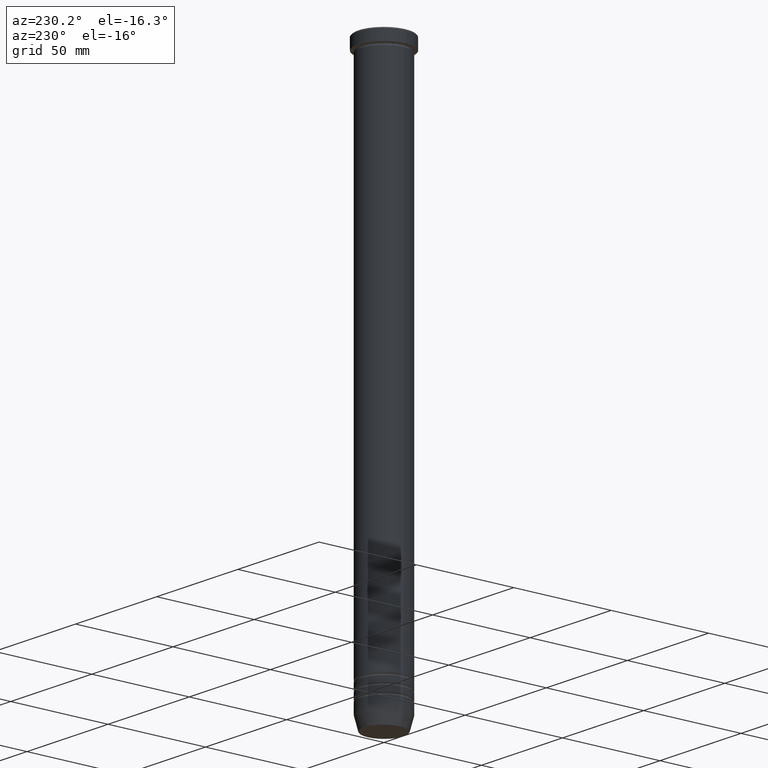
[diagram: clean part render]
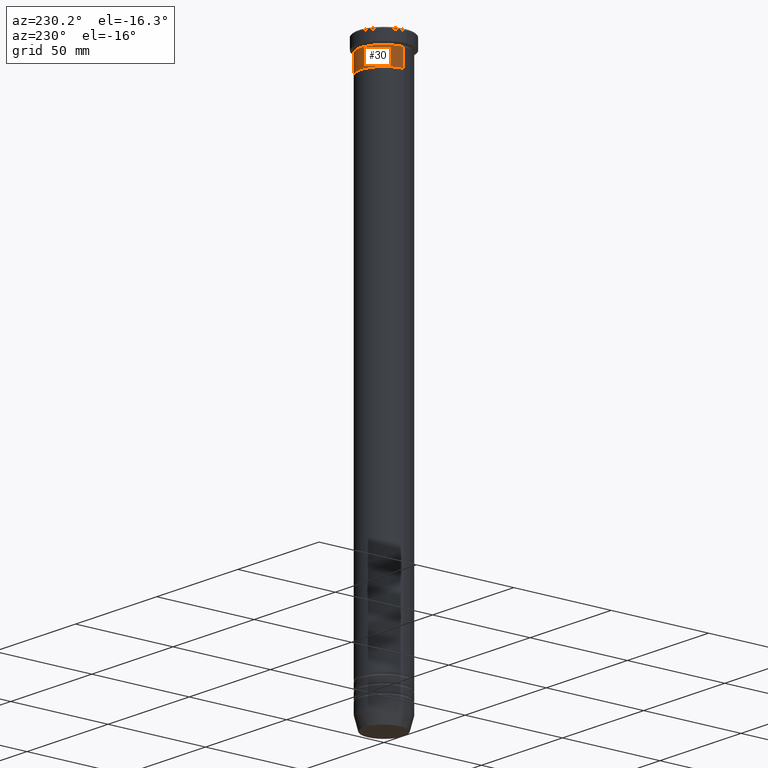
[diagram: same view with one face highlighted and labeled with its STEP entity id]
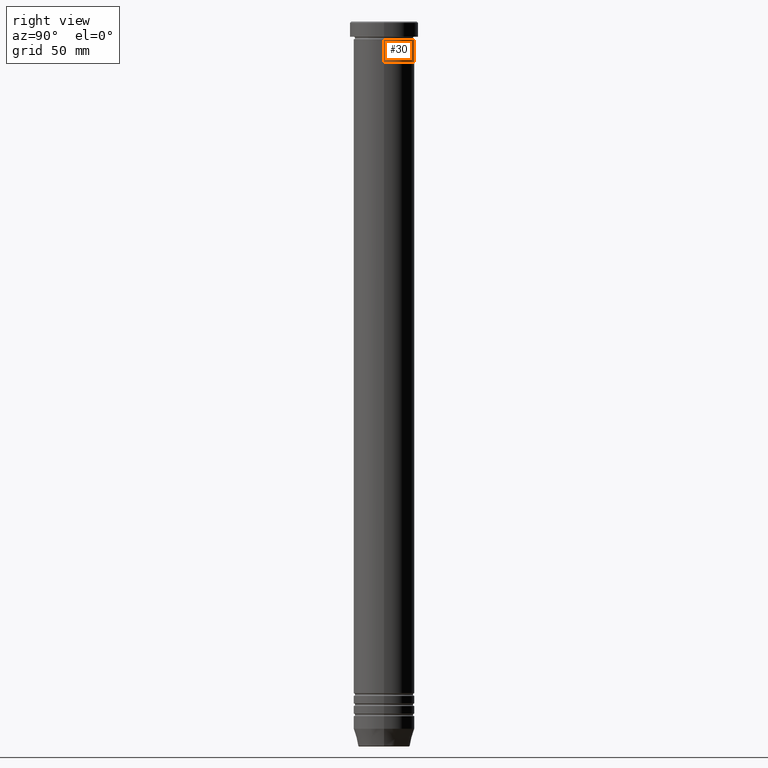
[diagram: same view with one face highlighted and labeled with its STEP entity id]
A machine part, auxiliary view. The second image highlights one B-rep face of the part: STEP entity #30.
A second angle (right view) of the same face is appended — the face is thin or edge-on in the first view.
In plain terms, the highlighted cylindrical surface (edge-blend (fillet) strip) has radius 12 mm, axis along (-0, -0, 1).
Its self-contained STEP definition (entity closure, byte-faithful):
#30 = ADVANCED_FACE ( 'NONE', ( #926 ), #318, .T. ) ;
#31 = DIRECTION ( 'NONE',  ( -0.000000000000000000, -0.000000000000000000, 1.000000000000000000 ) ) ;
#66 = EDGE_CURVE ( 'NONE', #770, #93, #213, .T. ) ;
#72 = VERTEX_POINT ( 'NONE', #1014 ) ;
#85 = CARTESIAN_POINT ( 'NONE',  ( -12.00000000000000000, 1.469576158976823947E-15, -6.999999999999999112 ) ) ;
#93 = VERTEX_POINT ( 'NONE', #122 ) ;
#122 = CARTESIAN_POINT ( 'NONE',  ( 12.00000000000000000, 0.000000000000000000, -6.999999999999999112 ) ) ;
#201 = LINE ( 'NONE', #562, #232 ) ;
#213 = LINE ( 'NONE', #1087, #325 ) ;
#232 = VECTOR ( 'NONE', #570, 1000.000000000000000 ) ;
#304 = AXIS2_PLACEMENT_3D ( 'NONE', #937, #31, #661 ) ;
#318 = CYLINDRICAL_SURFACE ( 'NONE', #304, 12.00000000000000000 ) ;
#325 = VECTOR ( 'NONE', #920, 1000.000000000000000 ) ;
#393 = DIRECTION ( 'NONE',  ( 1.000000000000000000, 0.000000000000000000, 0.000000000000000000 ) ) ;
#423 = CIRCLE ( 'NONE', #665, 12.00000000000000000 ) ;
#458 = ORIENTED_EDGE ( 'NONE', *, *, #66, .F. ) ;
#487 = EDGE_LOOP ( 'NONE', ( #789, #836, #702, #458 ) ) ;
#496 = EDGE_CURVE ( 'NONE', #72, #527, #201, .T. ) ;
#527 = VERTEX_POINT ( 'NONE', #85 ) ;
#562 = CARTESIAN_POINT ( 'NONE',  ( -12.00000000000000000, 1.469576158976823947E-15, 0.000000000000000000 ) ) ;
#570 = DIRECTION ( 'NONE',  ( -0.000000000000000000, -0.000000000000000000, 1.000000000000000000 ) ) ;
#661 = DIRECTION ( 'NONE',  ( 1.000000000000000000, 0.000000000000000000, 0.000000000000000000 ) ) ;
#665 = AXIS2_PLACEMENT_3D ( 'NONE', #779, #774, #964 ) ;
#702 = ORIENTED_EDGE ( 'NONE', *, *, #914, .F. ) ;
#770 = VERTEX_POINT ( 'NONE', #1086 ) ;
#774 = DIRECTION ( 'NONE',  ( -0.000000000000000000, -0.000000000000000000, 1.000000000000000000 ) ) ;
#779 = CARTESIAN_POINT ( 'NONE',  ( 0.000000000000000000, 0.000000000000000000, -6.999999999999999112 ) ) ;
#789 = ORIENTED_EDGE ( 'NONE', *, *, #846, .T. ) ;
#792 = AXIS2_PLACEMENT_3D ( 'NONE', #1080, #816, #393 ) ;
#816 = DIRECTION ( 'NONE',  ( -0.000000000000000000, -0.000000000000000000, 1.000000000000000000 ) ) ;
#836 = ORIENTED_EDGE ( 'NONE', *, *, #496, .T. ) ;
#846 = EDGE_CURVE ( 'NONE', #770, #72, #886, .T. ) ;
#886 = CIRCLE ( 'NONE', #792, 12.00000000000000000 ) ;
#914 = EDGE_CURVE ( 'NONE', #93, #527, #423, .T. ) ;
#920 = DIRECTION ( 'NONE',  ( -0.000000000000000000, -0.000000000000000000, 1.000000000000000000 ) ) ;
#926 = FACE_OUTER_BOUND ( 'NONE', #487, .T. ) ;
#937 = CARTESIAN_POINT ( 'NONE',  ( 0.000000000000000000, 0.000000000000000000, 0.000000000000000000 ) ) ;
#964 = DIRECTION ( 'NONE',  ( 1.000000000000000000, 0.000000000000000000, 0.000000000000000000 ) ) ;
#1014 = CARTESIAN_POINT ( 'NONE',  ( -12.00000000000000000, 1.469576158976823947E-15, -16.00000000000000000 ) ) ;
#1080 = CARTESIAN_POINT ( 'NONE',  ( 0.000000000000000000, 0.000000000000000000, -16.00000000000000000 ) ) ;
#1086 = CARTESIAN_POINT ( 'NONE',  ( 12.00000000000000000, 0.000000000000000000, -16.00000000000000000 ) ) ;
#1087 = CARTESIAN_POINT ( 'NONE',  ( 12.00000000000000000, 0.000000000000000000, 0.000000000000000000 ) ) ;